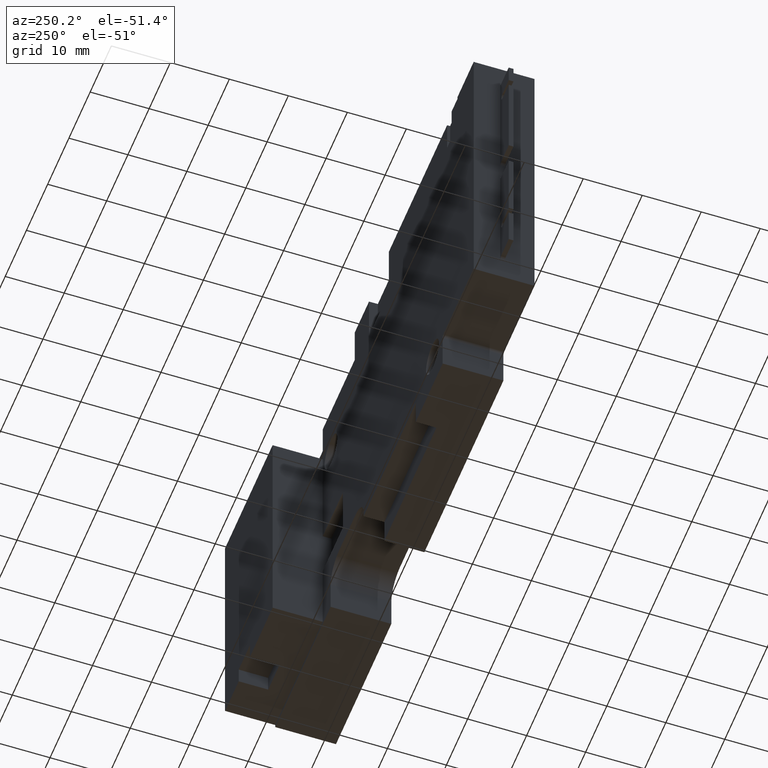
[diagram: clean part render]
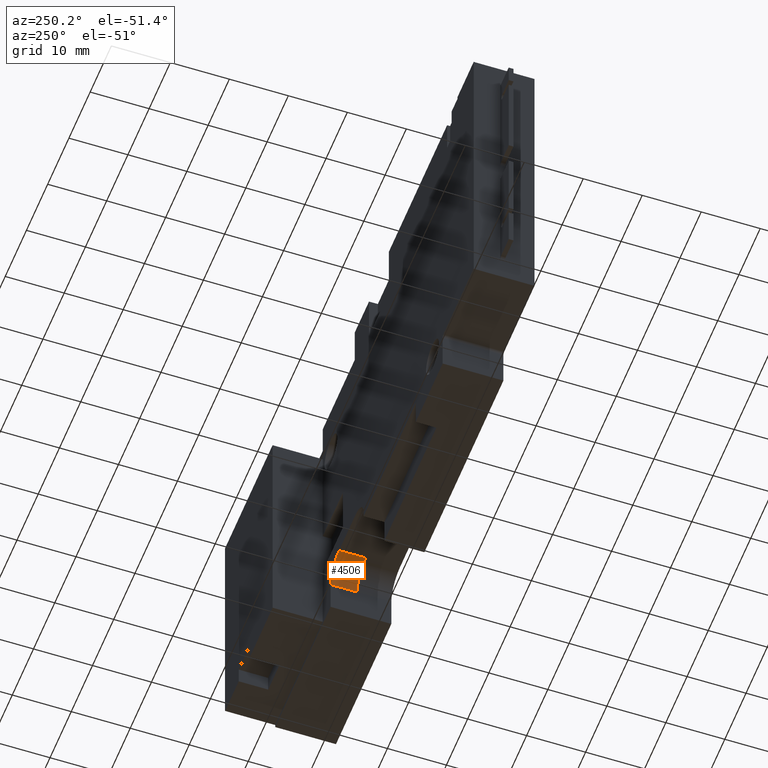
[diagram: same view with one face highlighted and labeled with its STEP entity id]
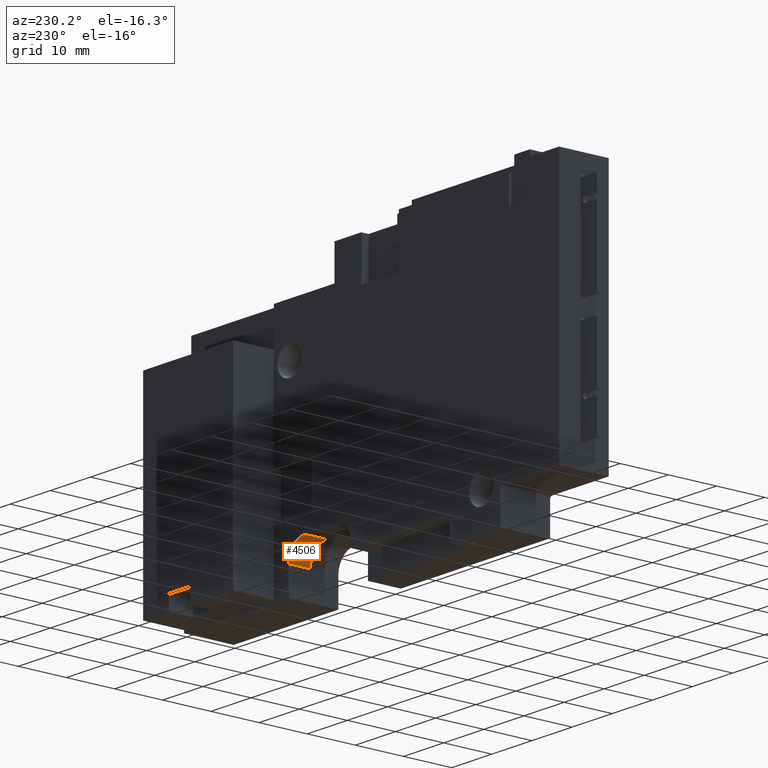
[diagram: same view with one face highlighted and labeled with its STEP entity id]
A machine part, auxiliary view. The second image highlights one B-rep face of the part: STEP entity #4506.
A second angle (auxiliary view) of the same face is appended — the face is thin or edge-on in the first view.
In plain terms, the highlighted cylindrical surface (edge-blend (fillet) strip) has radius 4 mm, axis along (-0, -1, -0).
Its self-contained STEP definition (entity closure, byte-faithful):
#122 = CARTESIAN_POINT ( 'NONE',  ( 27.17835815693734958, 7.850000000000967759, -25.82164184303792354 ) ) ;
#793 = ORIENTED_EDGE ( 'NONE', *, *, #20553, .T. ) ;
#1185 = AXIS2_PLACEMENT_3D ( 'NONE', #25720, #12985, #19451 ) ;
#3721 = ORIENTED_EDGE ( 'NONE', *, *, #6576, .F. ) ;
#4339 = FACE_OUTER_BOUND ( 'NONE', #20016, .T. ) ;
#4506 = ADVANCED_FACE ( 'NONE', ( #4339 ), #20742, .F. ) ;
#4757 = CARTESIAN_POINT ( 'NONE',  ( 23.17835815694024859, 3.350000000000960654, -21.82164184305287336 ) ) ;
#5384 = LINE ( 'NONE', #15879, #14910 ) ;
#6576 = EDGE_CURVE ( 'NONE', #14078, #23715, #10600, .T. ) ;
#10600 = LINE ( 'NONE', #23153, #21768 ) ;
#11176 = EDGE_CURVE ( 'NONE', #23715, #14345, #20608, .T. ) ;
#12648 = AXIS2_PLACEMENT_3D ( 'NONE', #17238, #21960, #26299 ) ;
#12753 = ORIENTED_EDGE ( 'NONE', *, *, #13301, .T. ) ;
#12985 = DIRECTION ( 'NONE',  ( 0.000000000000000000, 1.000000000000000000, 0.000000000000000000 ) ) ;
#13301 = EDGE_CURVE ( 'NONE', #18893, #14345, #5384, .T. ) ;
#13862 = AXIS2_PLACEMENT_3D ( 'NONE', #15676, #22361, #20178 ) ;
#14078 = VERTEX_POINT ( 'NONE', #22643 ) ;
#14345 = VERTEX_POINT ( 'NONE', #23785 ) ;
#14910 = VECTOR ( 'NONE', #24384, 1000.000000000000000 ) ;
#15676 = CARTESIAN_POINT ( 'NONE',  ( 23.17835815693734958, 3.350000000000960654, -25.82164184305287336 ) ) ;
#15879 = CARTESIAN_POINT ( 'NONE',  ( 27.17835815696634327, 131.5007172433329004, -25.82164184303792354 ) ) ;
#17164 = DIRECTION ( 'NONE',  ( -0.000000000000000000, -1.000000000000000000, -0.000000000000000000 ) ) ;
#17238 = CARTESIAN_POINT ( 'NONE',  ( 23.17835815693734958, 131.5007172433329004, -25.82164184305287336 ) ) ;
#18893 = VERTEX_POINT ( 'NONE', #122 ) ;
#19451 = DIRECTION ( 'NONE',  ( 0.000000000000000000, 0.000000000000000000, 1.000000000000000000 ) ) ;
#20016 = EDGE_LOOP ( 'NONE', ( #3721, #793, #12753, #20718 ) ) ;
#20178 = DIRECTION ( 'NONE',  ( 0.000000000000000000, 0.000000000000000000, 1.000000000000000000 ) ) ;
#20553 = EDGE_CURVE ( 'NONE', #14078, #18893, #24375, .T. ) ;
#20608 = CIRCLE ( 'NONE', #13862, 4.000000000000000000 ) ;
#20718 = ORIENTED_EDGE ( 'NONE', *, *, #11176, .F. ) ;
#20742 = CYLINDRICAL_SURFACE ( 'NONE', #12648, 4.000000000000000000 ) ;
#21768 = VECTOR ( 'NONE', #17164, 1000.000000000000000 ) ;
#21960 = DIRECTION ( 'NONE',  ( -0.000000000000000000, -1.000000000000000000, -0.000000000000000000 ) ) ;
#22361 = DIRECTION ( 'NONE',  ( -0.000000000000000000, 1.000000000000000000, 0.000000000000000000 ) ) ;
#22643 = CARTESIAN_POINT ( 'NONE',  ( 23.17835815694024859, 7.850000000000967759, -21.82164184307566757 ) ) ;
#23153 = CARTESIAN_POINT ( 'NONE',  ( 23.17835815694024859, 131.5007172433329004, -21.82164184305287336 ) ) ;
#23715 = VERTEX_POINT ( 'NONE', #4757 ) ;
#23785 = CARTESIAN_POINT ( 'NONE',  ( 27.17835815696634327, 3.350000000000960654, -25.82164184303792354 ) ) ;
#24375 = CIRCLE ( 'NONE', #1185, 4.000000000000000000 ) ;
#24384 = DIRECTION ( 'NONE',  ( -0.000000000000000000, -1.000000000000000000, -0.000000000000000000 ) ) ;
#25720 = CARTESIAN_POINT ( 'NONE',  ( 23.17835815693734958, 7.850000000000967759, -25.82164184305287336 ) ) ;
#26299 = DIRECTION ( 'NONE',  ( 0.000000000000000000, 0.000000000000000000, -1.000000000000000000 ) ) ;